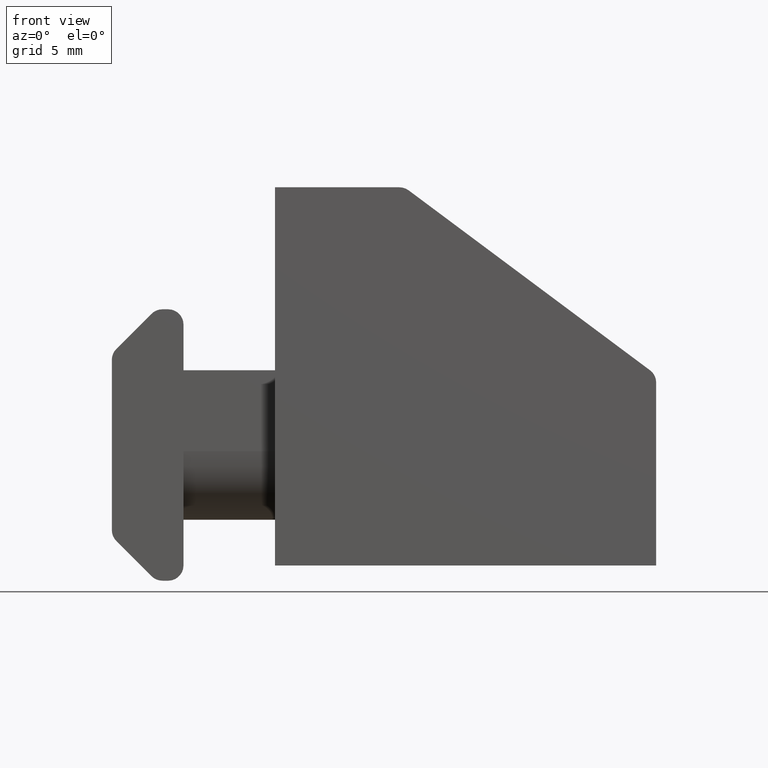
[diagram: clean part render]
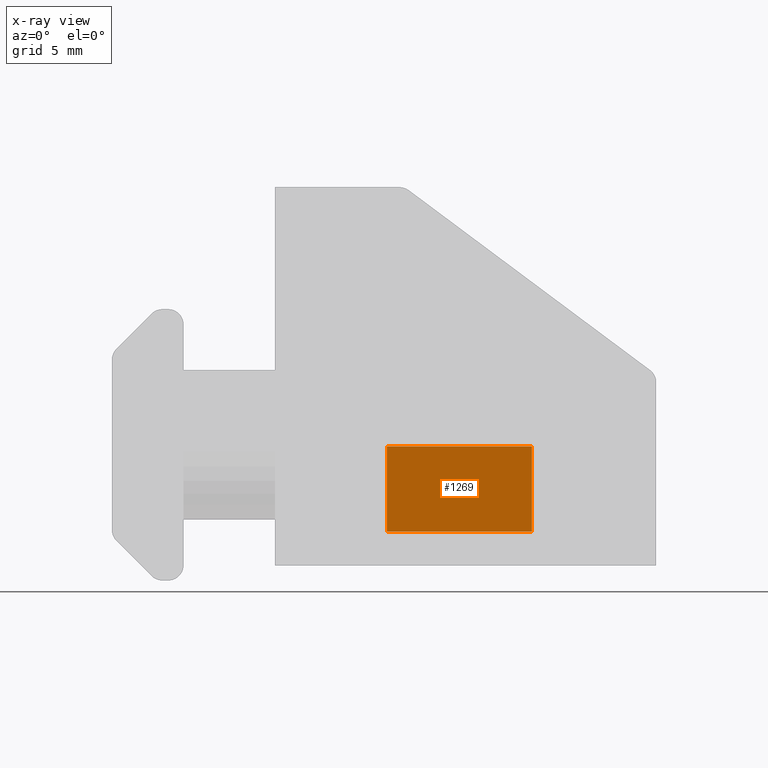
[diagram: x-ray — body ghosted, one internal face saturated and labeled with its STEP entity id]
A machine part, front view, then the same camera in x-ray: the body is ghosted and one INTERNAL B-rep face — a face not visible from any outside direction — is saturated and labeled: STEP entity #1269.
In plain terms, the highlighted planar face has unit normal (0, -1, 0).
Its self-contained STEP definition (entity closure, byte-faithful):
#14=PLANE('',#1339);
#64=LINE('',#1826,#208);
#66=LINE('',#1832,#210);
#67=LINE('',#1834,#211);
#68=LINE('',#1835,#212);
#208=VECTOR('',#1457,5.6);
#210=VECTOR('',#1463,9.5);
#211=VECTOR('',#1464,5.6);
#212=VECTOR('',#1465,9.5);
#362=FACE_OUTER_BOUND('',#427,.T.);
#427=EDGE_LOOP('',(#868,#869,#870,#871));
#547=VERTEX_POINT('',#1823);
#548=VERTEX_POINT('',#1825);
#550=VERTEX_POINT('',#1831);
#551=VERTEX_POINT('',#1833);
#673=EDGE_CURVE('',#547,#548,#64,.T.);
#676=EDGE_CURVE('',#550,#547,#66,.T.);
#677=EDGE_CURVE('',#551,#550,#67,.T.);
#678=EDGE_CURVE('',#548,#551,#68,.T.);
#868=ORIENTED_EDGE('',*,*,#673,.F.);
#869=ORIENTED_EDGE('',*,*,#676,.F.);
#870=ORIENTED_EDGE('',*,*,#677,.F.);
#871=ORIENTED_EDGE('',*,*,#678,.F.);
#1269=ADVANCED_FACE('',(#362),#14,.T.);
#1339=AXIS2_PLACEMENT_3D('',#1830,#1461,#1462);
#1457=DIRECTION('',(1.32169407693471E-16,0.,1.));
#1461=DIRECTION('center_axis',(0.,-1.,0.));
#1462=DIRECTION('ref_axis',(1.,0.,-1.77635683940025E-16));
#1463=DIRECTION('',(-1.,0.,1.77635683940025E-16));
#1464=DIRECTION('',(-1.32169407693471E-16,0.,-1.));
#1465=DIRECTION('',(1.,0.,-3.52451753849256E-16));
#1823=CARTESIAN_POINT('',(7.35,-5.75,2.2));
#1825=CARTESIAN_POINT('',(7.35,-5.75,7.8));
#1826=CARTESIAN_POINT('',(7.35,-5.75,2.2));
#1830=CARTESIAN_POINT('Origin',(6.35,-5.75,2.2));
#1831=CARTESIAN_POINT('',(16.85,-5.75,2.2));
#1832=CARTESIAN_POINT('',(15.675,-5.75,2.2));
#1833=CARTESIAN_POINT('',(16.85,-5.75,7.79999999999999));
#1834=CARTESIAN_POINT('',(16.85,-5.75,2.2));
#1835=CARTESIAN_POINT('',(15.675,-5.75,7.79999999999999));